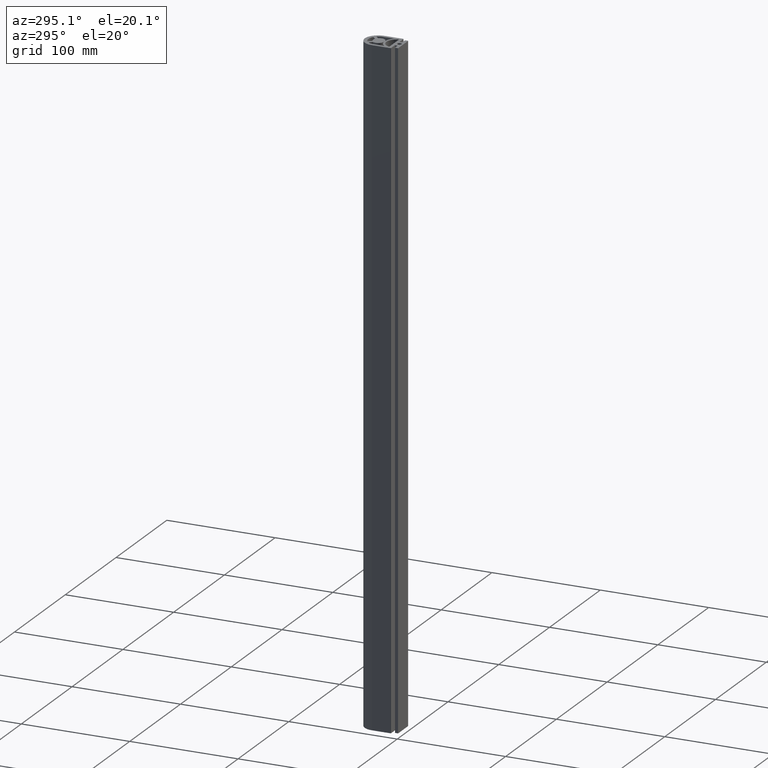
[diagram: clean part render]
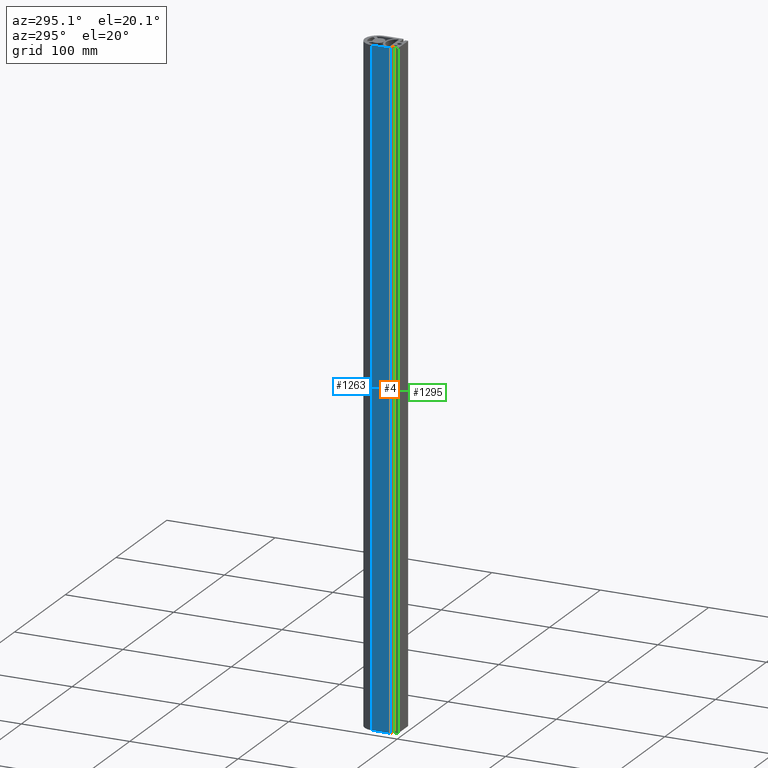
[diagram: same view with three faces highlighted in distinct colors, each labeled with its STEP entity id]
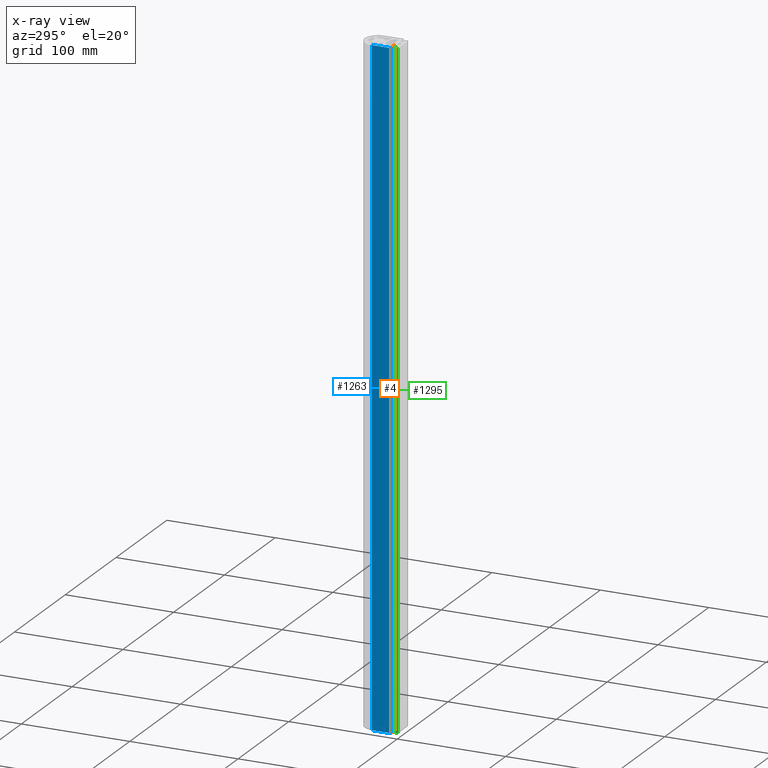
[diagram: x-ray of the same camera — body ghosted, the three highlighted faces saturated]
A machine part, auxiliary view with three faces highlighted in distinct colors.
The next image is the same camera in x-ray (body ghosted, the three faces saturated) — at least one of them is partly hidden behind the body in this view.
Their STEP definitions:

[orange] entity #4 — the highlighted planar face has unit normal (0, -1, 0).
#3 = EDGE_CURVE ( 'NONE', #1623, #1513, #293, .T. ) ;
#4 = ADVANCED_FACE ( 'NONE', ( #1259 ), #1609, .T. ) ;
#33 = CARTESIAN_POINT ( 'NONE',  ( -12.29999999471800000, -4.844499503159696600E-009, 509.6000000000000800 ) ) ;
#99 = VERTEX_POINT ( 'NONE', #1238 ) ;
#159 = CARTESIAN_POINT ( 'NONE',  ( -12.29999999471800000, -4.844499503159696600E-009, -99.99999999999997200 ) ) ;
#225 = EDGE_CURVE ( 'NONE', #1513, #99, #273, .T. ) ;
#236 = EDGE_CURVE ( 'NONE', #1623, #260, #329, .T. ) ;
#259 = CARTESIAN_POINT ( 'NONE',  ( -12.29999999471800000, -4.844499503159696600E-009, -99.99999999999997200 ) ) ;
#260 = VERTEX_POINT ( 'NONE', #1394 ) ;
#269 = DIRECTION ( 'NONE',  ( 1.000000000000000000, 0.0000000000000000000, 0.0000000000000000000 ) ) ;
#273 = LINE ( 'NONE', #33, #1095 ) ;
#287 = EDGE_CURVE ( 'NONE', #260, #99, #454, .T. ) ;
#293 = LINE ( 'NONE', #1603, #496 ) ;
#302 = DIRECTION ( 'NONE',  ( 0.0000000000000000000, 0.0000000000000000000, 1.000000000000000000 ) ) ;
#314 = CARTESIAN_POINT ( 'NONE',  ( -4.699999995082176700, -4.844499503159696600E-009, -99.99999999999997200 ) ) ;
#329 = LINE ( 'NONE', #159, #770 ) ;
#389 = DIRECTION ( 'NONE',  ( 0.0000000000000000000, -0.0000000000000000000, -1.000000000000000000 ) ) ;
#454 = LINE ( 'NONE', #314, #1593 ) ;
#496 = VECTOR ( 'NONE', #1327, 1000.000000000000000 ) ;
#690 = ORIENTED_EDGE ( 'NONE', *, *, #287, .T. ) ;
#770 = VECTOR ( 'NONE', #269, 1000.000000000000000 ) ;
#831 = AXIS2_PLACEMENT_3D ( 'NONE', #259, #1370, #389 ) ;
#832 = ORIENTED_EDGE ( 'NONE', *, *, #225, .F. ) ;
#836 = ORIENTED_EDGE ( 'NONE', *, *, #3, .F. ) ;
#889 = DIRECTION ( 'NONE',  ( 1.000000000000000000, 0.0000000000000000000, 0.0000000000000000000 ) ) ;
#908 = CARTESIAN_POINT ( 'NONE',  ( -12.29999999471800000, -4.844499503159696600E-009, 509.6000000000000800 ) ) ;
#1095 = VECTOR ( 'NONE', #889, 1000.000000000000000 ) ;
#1238 = CARTESIAN_POINT ( 'NONE',  ( -4.699999995082176700, -4.844499503159696600E-009, 509.6000000000000800 ) ) ;
#1259 = FACE_OUTER_BOUND ( 'NONE', #1615, .T. ) ;
#1311 = ORIENTED_EDGE ( 'NONE', *, *, #236, .T. ) ;
#1327 = DIRECTION ( 'NONE',  ( 0.0000000000000000000, 0.0000000000000000000, 1.000000000000000000 ) ) ;
#1370 = DIRECTION ( 'NONE',  ( 0.0000000000000000000, -1.000000000000000000, 0.0000000000000000000 ) ) ;
#1394 = CARTESIAN_POINT ( 'NONE',  ( -4.699999995082176700, -4.844499503159696600E-009, -99.99999999999997200 ) ) ;
#1430 = CARTESIAN_POINT ( 'NONE',  ( -12.29999999471800000, -4.844499503159696600E-009, -99.99999999999997200 ) ) ;
#1513 = VERTEX_POINT ( 'NONE', #908 ) ;
#1593 = VECTOR ( 'NONE', #302, 1000.000000000000000 ) ;
#1603 = CARTESIAN_POINT ( 'NONE',  ( -12.29999999471800000, -4.844499503159696600E-009, -99.99999999999997200 ) ) ;
#1609 = PLANE ( 'NONE',  #831 ) ;
#1615 = EDGE_LOOP ( 'NONE', ( #832, #836, #1311, #690 ) ) ;
#1623 = VERTEX_POINT ( 'NONE', #1430 ) ;

[blue] entity #1263 — the highlighted planar face has unit normal (-1, 0, 0).
#6 = LINE ( 'NONE', #533, #309 ) ;
#83 = EDGE_LOOP ( 'NONE', ( #759, #712, #1422, #572 ) ) ;
#112 = DIRECTION ( 'NONE',  ( 0.0000000000000000000, 0.0000000000000000000, 1.000000000000000000 ) ) ;
#150 = FACE_OUTER_BOUND ( 'NONE', #83, .T. ) ;
#153 = VECTOR ( 'NONE', #1228, 1000.000000000000000 ) ;
#183 = CARTESIAN_POINT ( 'NONE',  ( -12.49999999800000000, 17.49999999845801200, -99.99999999999997200 ) ) ;
#309 = VECTOR ( 'NONE', #1277, 1000.000000000000000 ) ;
#323 = CARTESIAN_POINT ( 'NONE',  ( -12.49999999800000000, 0.1999999984375008800, 509.6000000000000800 ) ) ;
#330 = VECTOR ( 'NONE', #1065, 1000.000000000000000 ) ;
#362 = CARTESIAN_POINT ( 'NONE',  ( -12.49999999800000000, 17.49999999845801200, -99.99999999999997200 ) ) ;
#418 = EDGE_CURVE ( 'NONE', #634, #804, #1506, .T. ) ;
#447 = EDGE_CURVE ( 'NONE', #1075, #1378, #530, .T. ) ;
#485 = DIRECTION ( 'NONE',  ( 0.0000000000000000000, -1.000000000000000000, 0.0000000000000000000 ) ) ;
#530 = LINE ( 'NONE', #362, #153 ) ;
#533 = CARTESIAN_POINT ( 'NONE',  ( -12.49999999800000000, 0.1999999984375008800, -99.99999999999997200 ) ) ;
#572 = ORIENTED_EDGE ( 'NONE', *, *, #1474, .T. ) ;
#634 = VERTEX_POINT ( 'NONE', #874 ) ;
#665 = VECTOR ( 'NONE', #485, 1000.000000000000000 ) ;
#712 = ORIENTED_EDGE ( 'NONE', *, *, #1119, .F. ) ;
#737 = CARTESIAN_POINT ( 'NONE',  ( -12.49999999800000000, 0.1999999984375008800, -99.99999999999997200 ) ) ;
#759 = ORIENTED_EDGE ( 'NONE', *, *, #418, .F. ) ;
#804 = VERTEX_POINT ( 'NONE', #323 ) ;
#874 = CARTESIAN_POINT ( 'NONE',  ( -12.49999999800000000, 17.49999999845801200, 509.6000000000000800 ) ) ;
#893 = AXIS2_PLACEMENT_3D ( 'NONE', #1344, #1587, #112 ) ;
#927 = LINE ( 'NONE', #1445, #330 ) ;
#1065 = DIRECTION ( 'NONE',  ( 0.0000000000000000000, 0.0000000000000000000, 1.000000000000000000 ) ) ;
#1075 = VERTEX_POINT ( 'NONE', #183 ) ;
#1119 = EDGE_CURVE ( 'NONE', #1075, #634, #927, .T. ) ;
#1228 = DIRECTION ( 'NONE',  ( 0.0000000000000000000, -1.000000000000000000, 0.0000000000000000000 ) ) ;
#1263 = ADVANCED_FACE ( 'NONE', ( #150 ), #1339, .T. ) ;
#1277 = DIRECTION ( 'NONE',  ( 0.0000000000000000000, 0.0000000000000000000, 1.000000000000000000 ) ) ;
#1339 = PLANE ( 'NONE',  #893 ) ;
#1344 = CARTESIAN_POINT ( 'NONE',  ( -12.49999999800000000, 17.49999999845801200, -99.99999999999997200 ) ) ;
#1378 = VERTEX_POINT ( 'NONE', #737 ) ;
#1422 = ORIENTED_EDGE ( 'NONE', *, *, #447, .T. ) ;
#1445 = CARTESIAN_POINT ( 'NONE',  ( -12.49999999800000000, 17.49999999845801200, -99.99999999999997200 ) ) ;
#1474 = EDGE_CURVE ( 'NONE', #1378, #804, #6, .T. ) ;
#1506 = LINE ( 'NONE', #1602, #665 ) ;
#1587 = DIRECTION ( 'NONE',  ( -1.000000000000000000, 0.0000000000000000000, 0.0000000000000000000 ) ) ;
#1602 = CARTESIAN_POINT ( 'NONE',  ( -12.49999999800000000, 17.49999999845801200, 509.6000000000000800 ) ) ;

[green] entity #1295 — the highlighted planar face has unit normal (-1, 0, 0).
#18 = CARTESIAN_POINT ( 'NONE',  ( -9.999999994267534800, -5.299999997997332500, -99.99999999999997200 ) ) ;
#21 = ORIENTED_EDGE ( 'NONE', *, *, #1349, .F. ) ;
#58 = LINE ( 'NONE', #1483, #1303 ) ;
#119 = VERTEX_POINT ( 'NONE', #1251 ) ;
#154 = VECTOR ( 'NONE', #763, 1000.000000000000000 ) ;
#275 = CARTESIAN_POINT ( 'NONE',  ( -9.999999994267533100, -2.699999997997331900, -99.99999999999997200 ) ) ;
#324 = AXIS2_PLACEMENT_3D ( 'NONE', #838, #841, #1358 ) ;
#377 = CARTESIAN_POINT ( 'NONE',  ( -9.999999994267533100, -2.699999997997331900, 509.6000000000000800 ) ) ;
#396 = VERTEX_POINT ( 'NONE', #468 ) ;
#468 = CARTESIAN_POINT ( 'NONE',  ( -9.999999994267533100, -2.699999997997331900, -99.99999999999997200 ) ) ;
#518 = ORIENTED_EDGE ( 'NONE', *, *, #994, .F. ) ;
#521 = DIRECTION ( 'NONE',  ( -6.672013369141566200E-016, -1.000000000000000000, 0.0000000000000000000 ) ) ;
#536 = CARTESIAN_POINT ( 'NONE',  ( -9.999999994267533100, -2.699999997997331900, -99.99999999999997200 ) ) ;
#586 = VECTOR ( 'NONE', #788, 1000.000000000000000 ) ;
#600 = EDGE_CURVE ( 'NONE', #965, #119, #58, .T. ) ;
#739 = EDGE_LOOP ( 'NONE', ( #21, #518, #816, #1581 ) ) ;
#763 = DIRECTION ( 'NONE',  ( -6.672013369141566200E-016, -1.000000000000000000, 0.0000000000000000000 ) ) ;
#771 = LINE ( 'NONE', #275, #154 ) ;
#788 = DIRECTION ( 'NONE',  ( 0.0000000000000000000, 0.0000000000000000000, 1.000000000000000000 ) ) ;
#816 = ORIENTED_EDGE ( 'NONE', *, *, #968, .T. ) ;
#826 = LINE ( 'NONE', #377, #1374 ) ;
#838 = CARTESIAN_POINT ( 'NONE',  ( -9.999999994267533100, -2.699999997997331900, -99.99999999999997200 ) ) ;
#841 = DIRECTION ( 'NONE',  ( -1.000000000000000000, 6.672013369141567200E-016, 0.0000000000000000000 ) ) ;
#843 = FACE_OUTER_BOUND ( 'NONE', #739, .T. ) ;
#932 = CARTESIAN_POINT ( 'NONE',  ( -9.999999994267533100, -2.699999997997331900, 509.6000000000000800 ) ) ;
#965 = VERTEX_POINT ( 'NONE', #18 ) ;
#968 = EDGE_CURVE ( 'NONE', #396, #965, #771, .T. ) ;
#994 = EDGE_CURVE ( 'NONE', #396, #1171, #1241, .T. ) ;
#1171 = VERTEX_POINT ( 'NONE', #932 ) ;
#1241 = LINE ( 'NONE', #536, #586 ) ;
#1251 = CARTESIAN_POINT ( 'NONE',  ( -9.999999994267534800, -5.299999997997332500, 509.6000000000000800 ) ) ;
#1295 = ADVANCED_FACE ( 'NONE', ( #843 ), #1604, .T. ) ;
#1303 = VECTOR ( 'NONE', #1614, 1000.000000000000000 ) ;
#1349 = EDGE_CURVE ( 'NONE', #1171, #119, #826, .T. ) ;
#1358 = DIRECTION ( 'NONE',  ( -6.672013369141567200E-016, -1.000000000000000000, 0.0000000000000000000 ) ) ;
#1374 = VECTOR ( 'NONE', #521, 1000.000000000000000 ) ;
#1483 = CARTESIAN_POINT ( 'NONE',  ( -9.999999994267534800, -5.299999997997332500, -99.99999999999997200 ) ) ;
#1581 = ORIENTED_EDGE ( 'NONE', *, *, #600, .T. ) ;
#1604 = PLANE ( 'NONE',  #324 ) ;
#1614 = DIRECTION ( 'NONE',  ( 0.0000000000000000000, 0.0000000000000000000, 1.000000000000000000 ) ) ;